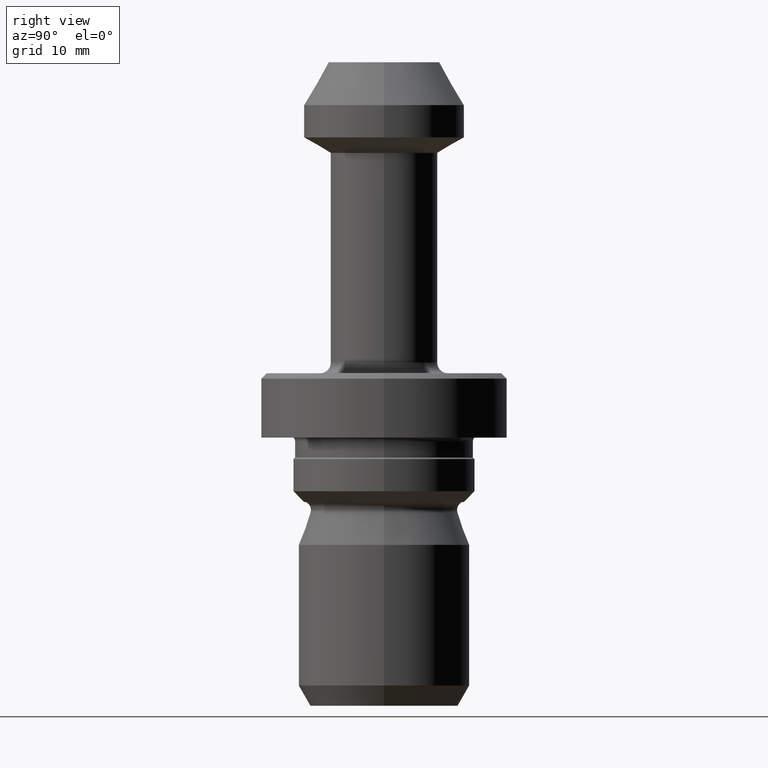
[diagram: clean part render]
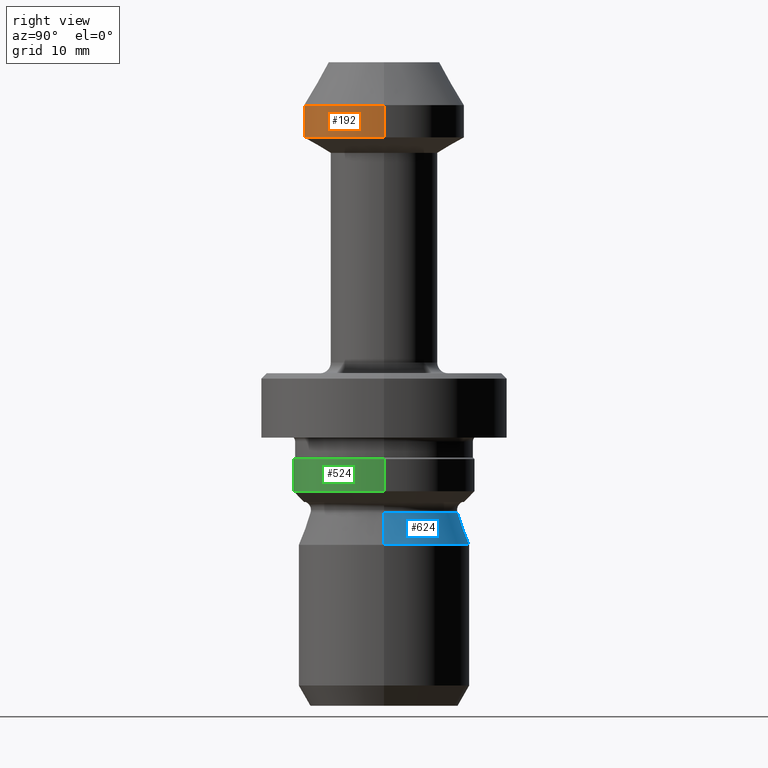
[diagram: same view with three faces highlighted in distinct colors, each labeled with its STEP entity id]
A machine part, right view with three faces highlighted in distinct colors.
Their STEP definitions:

[orange] entity #192 — the highlighted cylindrical surface (partial cylindrical patch) has radius 7.5 mm, axis along (-0, -0, 1).
#15 = FACE_OUTER_BOUND ( 'NONE', #627, .T. ) ;
#18 = CIRCLE ( 'NONE', #459, 7.500000000000000000 ) ;
#22 = DIRECTION ( 'NONE',  ( -0.0000000000000000000, -0.0000000000000000000, 1.000000000000000000 ) ) ;
#48 = AXIS2_PLACEMENT_3D ( 'NONE', #70, #938, #676 ) ;
#67 = CARTESIAN_POINT ( 'NONE',  ( -7.500000000000000000, 9.184850993605147900E-016, -4.000000000000000000 ) ) ;
#70 = CARTESIAN_POINT ( 'NONE',  ( 0.0000000000000000000, 0.0000000000000000000, -4.000000000000000000 ) ) ;
#80 = DIRECTION ( 'NONE',  ( -0.0000000000000000000, -0.0000000000000000000, 1.000000000000000000 ) ) ;
#103 = CARTESIAN_POINT ( 'NONE',  ( 7.500000000000000000, 0.0000000000000000000, -7.000000000000000000 ) ) ;
#152 = VERTEX_POINT ( 'NONE', #806 ) ;
#171 = EDGE_CURVE ( 'NONE', #152, #870, #693, .T. ) ;
#192 = ADVANCED_FACE ( 'NONE', ( #15 ), #882, .T. ) ;
#207 = CARTESIAN_POINT ( 'NONE',  ( -7.500000000000000000, 9.184850993605147900E-016, 0.0000000000000000000 ) ) ;
#302 = VECTOR ( 'NONE', #22, 1000.000000000000000 ) ;
#304 = ORIENTED_EDGE ( 'NONE', *, *, #171, .F. ) ;
#351 = EDGE_CURVE ( 'NONE', #870, #514, #653, .T. ) ;
#356 = CARTESIAN_POINT ( 'NONE',  ( 7.500000000000000000, 0.0000000000000000000, -4.000000000000000000 ) ) ;
#410 = DIRECTION ( 'NONE',  ( 1.000000000000000000, 0.0000000000000000000, 0.0000000000000000000 ) ) ;
#425 = VERTEX_POINT ( 'NONE', #103 ) ;
#440 = AXIS2_PLACEMENT_3D ( 'NONE', #700, #80, #535 ) ;
#459 = AXIS2_PLACEMENT_3D ( 'NONE', #760, #1009, #410 ) ;
#493 = EDGE_CURVE ( 'NONE', #152, #425, #18, .T. ) ;
#514 = VERTEX_POINT ( 'NONE', #356 ) ;
#535 = DIRECTION ( 'NONE',  ( 1.000000000000000000, 0.0000000000000000000, 0.0000000000000000000 ) ) ;
#566 = EDGE_CURVE ( 'NONE', #425, #514, #859, .T. ) ;
#627 = EDGE_LOOP ( 'NONE', ( #304, #1119, #1114, #1091 ) ) ;
#653 = CIRCLE ( 'NONE', #48, 7.500000000000000000 ) ;
#666 = CARTESIAN_POINT ( 'NONE',  ( 7.500000000000000000, 0.0000000000000000000, 0.0000000000000000000 ) ) ;
#676 = DIRECTION ( 'NONE',  ( 1.000000000000000000, 0.0000000000000000000, 0.0000000000000000000 ) ) ;
#693 = LINE ( 'NONE', #207, #302 ) ;
#700 = CARTESIAN_POINT ( 'NONE',  ( 0.0000000000000000000, 0.0000000000000000000, 0.0000000000000000000 ) ) ;
#760 = CARTESIAN_POINT ( 'NONE',  ( 0.0000000000000000000, 0.0000000000000000000, -7.000000000000000000 ) ) ;
#806 = CARTESIAN_POINT ( 'NONE',  ( -7.500000000000000000, 9.184850993605147900E-016, -7.000000000000000000 ) ) ;
#859 = LINE ( 'NONE', #666, #1060 ) ;
#870 = VERTEX_POINT ( 'NONE', #67 ) ;
#882 = CYLINDRICAL_SURFACE ( 'NONE', #440, 7.500000000000000000 ) ;
#938 = DIRECTION ( 'NONE',  ( -0.0000000000000000000, -0.0000000000000000000, 1.000000000000000000 ) ) ;
#972 = DIRECTION ( 'NONE',  ( -0.0000000000000000000, -0.0000000000000000000, 1.000000000000000000 ) ) ;
#1009 = DIRECTION ( 'NONE',  ( -0.0000000000000000000, -0.0000000000000000000, 1.000000000000000000 ) ) ;
#1060 = VECTOR ( 'NONE', #972, 1000.000000000000000 ) ;
#1091 = ORIENTED_EDGE ( 'NONE', *, *, #351, .F. ) ;
#1114 = ORIENTED_EDGE ( 'NONE', *, *, #566, .T. ) ;
#1119 = ORIENTED_EDGE ( 'NONE', *, *, #493, .T. ) ;

[blue] entity #624 — the highlighted conical surface has half-angle 20 deg.
#9 = CARTESIAN_POINT ( 'NONE',  ( 0.0000000000000000000, 0.0000000000000000000, -45.00000000000002800 ) ) ;
#126 = ORIENTED_EDGE ( 'NONE', *, *, #191, .T. ) ;
#142 = EDGE_LOOP ( 'NONE', ( #889, #193, #126, #1008 ) ) ;
#191 = EDGE_CURVE ( 'NONE', #876, #773, #725, .T. ) ;
#193 = ORIENTED_EDGE ( 'NONE', *, *, #267, .T. ) ;
#214 = VECTOR ( 'NONE', #708, 1000.000000000000000 ) ;
#232 = DIRECTION ( 'NONE',  ( 1.000000000000000000, 0.0000000000000000000, 0.0000000000000000000 ) ) ;
#267 = EDGE_CURVE ( 'NONE', #788, #876, #1026, .T. ) ;
#324 = EDGE_CURVE ( 'NONE', #788, #1065, #917, .T. ) ;
#388 = AXIS2_PLACEMENT_3D ( 'NONE', #9, #1032, #1040 ) ;
#404 = DIRECTION ( 'NONE',  ( -0.0000000000000000000, -0.0000000000000000000, 1.000000000000000000 ) ) ;
#411 = CARTESIAN_POINT ( 'NONE',  ( 0.0000000000000000000, 0.0000000000000000000, -42.01247772173157800 ) ) ;
#420 = DIRECTION ( 'NONE',  ( 0.3420201433256702700, 4.188538737677010900E-017, -0.9396926207859078700 ) ) ;
#446 = CARTESIAN_POINT ( 'NONE',  ( 0.0000000000000000000, 0.0000000000000000000, -45.00000000000002800 ) ) ;
#449 = LINE ( 'NONE', #805, #214 ) ;
#468 = CARTESIAN_POINT ( 'NONE',  ( -8.000000000000000000, 9.797174393178827600E-016, -45.00000000000002800 ) ) ;
#591 = FACE_OUTER_BOUND ( 'NONE', #142, .T. ) ;
#624 = ADVANCED_FACE ( 'NONE', ( #591 ), #1003, .T. ) ;
#644 = CARTESIAN_POINT ( 'NONE',  ( -6.912630816503128300, 0.0000000000000000000, -42.01247772173157800 ) ) ;
#708 = DIRECTION ( 'NONE',  ( -0.3420201433256702700, 0.0000000000000000000, -0.9396926207859078700 ) ) ;
#725 = CIRCLE ( 'NONE', #388, 8.000000000000000000 ) ;
#733 = CARTESIAN_POINT ( 'NONE',  ( 6.912630816503128300, 9.131352798148367400E-016, -42.01247772173157800 ) ) ;
#773 = VERTEX_POINT ( 'NONE', #468 ) ;
#774 = AXIS2_PLACEMENT_3D ( 'NONE', #411, #404, #232 ) ;
#788 = VERTEX_POINT ( 'NONE', #733 ) ;
#805 = CARTESIAN_POINT ( 'NONE',  ( -8.000000000000000000, 0.0000000000000000000, -45.00000000000002800 ) ) ;
#876 = VERTEX_POINT ( 'NONE', #1103 ) ;
#889 = ORIENTED_EDGE ( 'NONE', *, *, #324, .F. ) ;
#917 = CIRCLE ( 'NONE', #774, 6.912630816503128300 ) ;
#921 = AXIS2_PLACEMENT_3D ( 'NONE', #446, #941, #1051 ) ;
#941 = DIRECTION ( 'NONE',  ( 0.0000000000000000000, 0.0000000000000000000, -1.000000000000000000 ) ) ;
#999 = VECTOR ( 'NONE', #420, 1000.000000000000000 ) ;
#1003 = CONICAL_SURFACE ( 'NONE', #921, 8.000000000000000000, 0.3490658503988675100 ) ;
#1008 = ORIENTED_EDGE ( 'NONE', *, *, #1110, .F. ) ;
#1026 = LINE ( 'NONE', #1094, #999 ) ;
#1032 = DIRECTION ( 'NONE',  ( -0.0000000000000000000, -0.0000000000000000000, 1.000000000000000000 ) ) ;
#1040 = DIRECTION ( 'NONE',  ( 1.000000000000000000, 0.0000000000000000000, 0.0000000000000000000 ) ) ;
#1051 = DIRECTION ( 'NONE',  ( -1.000000000000000000, 0.0000000000000000000, 0.0000000000000000000 ) ) ;
#1065 = VERTEX_POINT ( 'NONE', #644 ) ;
#1094 = CARTESIAN_POINT ( 'NONE',  ( 8.000000000000000000, 9.797174393178825700E-016, -45.00000000000002800 ) ) ;
#1103 = CARTESIAN_POINT ( 'NONE',  ( 8.000000000000000000, 0.0000000000000000000, -45.00000000000002800 ) ) ;
#1110 = EDGE_CURVE ( 'NONE', #1065, #773, #449, .T. ) ;

[green] entity #524 — the highlighted cylindrical surface (partial cylindrical patch) has radius 8.5 mm, axis along (-0, -0, 1).
#50 = CARTESIAN_POINT ( 'NONE',  ( 8.499999999998896900, 0.0000000000000000000, 0.0000000000000000000 ) ) ;
#59 = CARTESIAN_POINT ( 'NONE',  ( 0.0000000000000000000, 0.0000000000000000000, -39.99999999999997900 ) ) ;
#88 = VECTOR ( 'NONE', #105, 1000.000000000000000 ) ;
#105 = DIRECTION ( 'NONE',  ( -0.0000000000000000000, -0.0000000000000000000, 1.000000000000000000 ) ) ;
#129 = EDGE_CURVE ( 'NONE', #912, #620, #386, .T. ) ;
#222 = AXIS2_PLACEMENT_3D ( 'NONE', #887, #450, #1053 ) ;
#223 = CARTESIAN_POINT ( 'NONE',  ( 8.499999999998896900, 0.0000000000000000000, -39.99999999999997900 ) ) ;
#276 = VECTOR ( 'NONE', #319, 1000.000000000000000 ) ;
#319 = DIRECTION ( 'NONE',  ( -0.0000000000000000000, -0.0000000000000000000, 1.000000000000000000 ) ) ;
#321 = DIRECTION ( 'NONE',  ( -0.0000000000000000000, -0.0000000000000000000, 1.000000000000000000 ) ) ;
#342 = EDGE_CURVE ( 'NONE', #912, #1035, #869, .T. ) ;
#360 = ORIENTED_EDGE ( 'NONE', *, *, #129, .F. ) ;
#386 = LINE ( 'NONE', #716, #88 ) ;
#396 = VERTEX_POINT ( 'NONE', #623 ) ;
#450 = DIRECTION ( 'NONE',  ( -0.0000000000000000000, -0.0000000000000000000, 1.000000000000000000 ) ) ;
#454 = ORIENTED_EDGE ( 'NONE', *, *, #342, .T. ) ;
#472 = EDGE_CURVE ( 'NONE', #620, #396, #502, .T. ) ;
#502 = CIRCLE ( 'NONE', #222, 8.499999999998896900 ) ;
#524 = ADVANCED_FACE ( 'NONE', ( #884 ), #1080, .T. ) ;
#620 = VERTEX_POINT ( 'NONE', #814 ) ;
#623 = CARTESIAN_POINT ( 'NONE',  ( 8.499999999998896900, 0.0000000000000000000, -37.00000000000001400 ) ) ;
#685 = AXIS2_PLACEMENT_3D ( 'NONE', #1115, #867, #896 ) ;
#716 = CARTESIAN_POINT ( 'NONE',  ( -8.499999999998896900, 1.040949779275115200E-015, 0.0000000000000000000 ) ) ;
#757 = CARTESIAN_POINT ( 'NONE',  ( -8.499999999998896900, 1.040949779275115000E-015, -39.99999999999997900 ) ) ;
#769 = EDGE_LOOP ( 'NONE', ( #360, #454, #1082, #1063 ) ) ;
#771 = DIRECTION ( 'NONE',  ( 1.000000000000000000, 0.0000000000000000000, 0.0000000000000000000 ) ) ;
#814 = CARTESIAN_POINT ( 'NONE',  ( -8.499999999998896900, 1.040949779275115200E-015, -37.00000000000001400 ) ) ;
#867 = DIRECTION ( 'NONE',  ( -0.0000000000000000000, -0.0000000000000000000, 1.000000000000000000 ) ) ;
#869 = CIRCLE ( 'NONE', #1061, 8.499999999998896900 ) ;
#884 = FACE_OUTER_BOUND ( 'NONE', #769, .T. ) ;
#887 = CARTESIAN_POINT ( 'NONE',  ( 0.0000000000000000000, 0.0000000000000000000, -37.00000000000001400 ) ) ;
#896 = DIRECTION ( 'NONE',  ( 1.000000000000000000, 0.0000000000000000000, 0.0000000000000000000 ) ) ;
#912 = VERTEX_POINT ( 'NONE', #757 ) ;
#967 = LINE ( 'NONE', #50, #276 ) ;
#1033 = EDGE_CURVE ( 'NONE', #1035, #396, #967, .T. ) ;
#1035 = VERTEX_POINT ( 'NONE', #223 ) ;
#1053 = DIRECTION ( 'NONE',  ( 1.000000000000000000, 0.0000000000000000000, 0.0000000000000000000 ) ) ;
#1061 = AXIS2_PLACEMENT_3D ( 'NONE', #59, #321, #771 ) ;
#1063 = ORIENTED_EDGE ( 'NONE', *, *, #472, .F. ) ;
#1080 = CYLINDRICAL_SURFACE ( 'NONE', #685, 8.499999999998896900 ) ;
#1082 = ORIENTED_EDGE ( 'NONE', *, *, #1033, .T. ) ;
#1115 = CARTESIAN_POINT ( 'NONE',  ( 0.0000000000000000000, 0.0000000000000000000, 0.0000000000000000000 ) ) ;